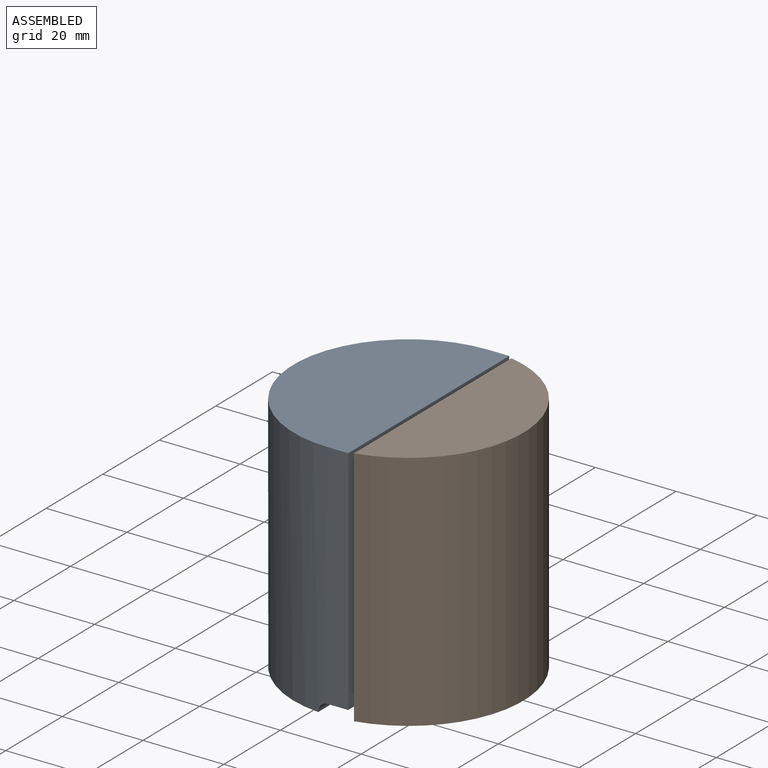
[diagram: assembled view]
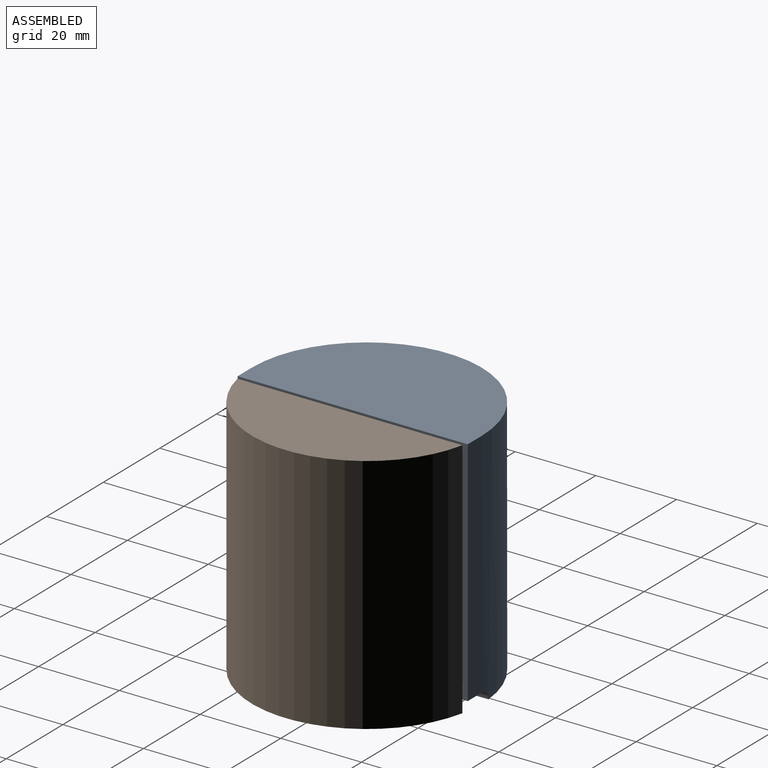
[diagram: assembled view, second angle]
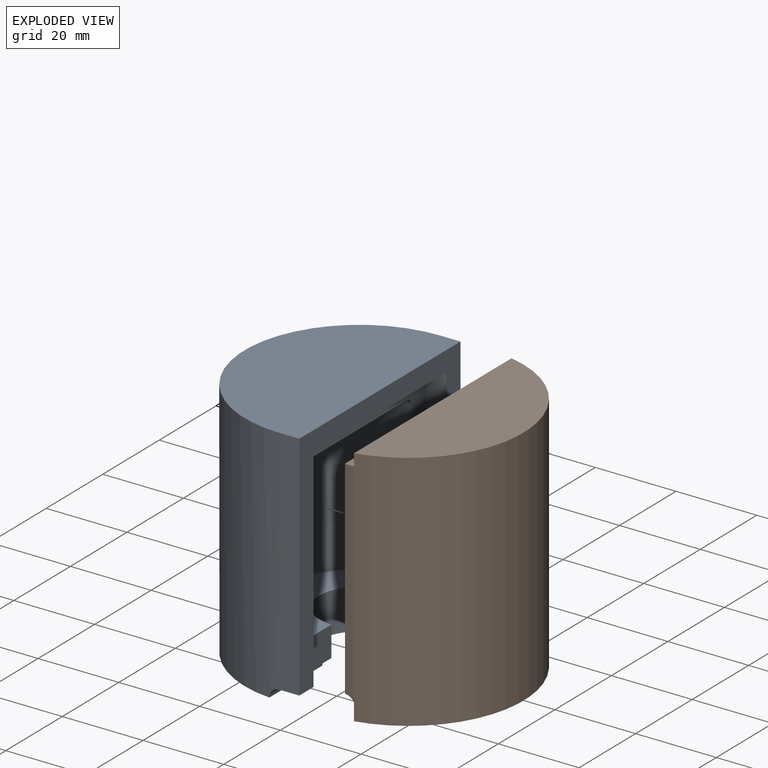
[diagram: exploded view]
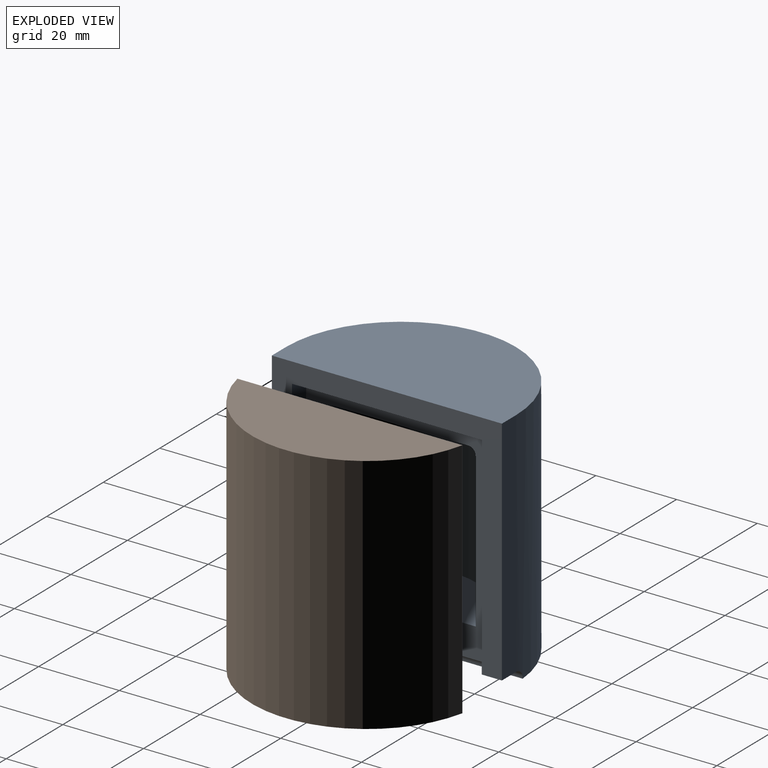
[diagram: exploded view, second angle]
ASSEMBLY  parts=2 mates=3
PART A: 19 faces, bbox 33.5x57x60 mm
  f0: plane 52.5x47mm, normal (1,0,0), area 839.1mm2, adj f1,f5,f6,f7,f8,f9,f10,f11
  f1: cylinder r=10mm len=20mm, axis (0,0,-1), area 304.3mm2, adj f0,f2,f7,f8,f9
  f2: plane 56.78x26mm, normal (0,0,1), area 1026mm2, adj f1,f3,f8,f9
  f3: cylinder r=28.5mm len=60mm, axis (0,0,-1), area 5362.3mm2, adj f2,f4,f8,f9,f15,f16
  f4: plane 57x33.5mm, normal (0,0,-1), area 1560.9mm2, adj f3,f15,f16,f18
  f5: plane 33.19x16.6mm, normal (0,0,1), area 432.6mm2, adj f0,f10
  f6: cylinder r=18.5mm len=38.1mm, axis (0,0,-1), area 2214.1mm2, adj f0,f7,f10
  f7: plane 37x18.5mm, normal (0,0,-1), area 380.5mm2, adj f0,f1,f6
  f8: cylinder r=2.5mm len=18.82mm, axis (0,-1,0), area 73.1mm2, adj f0,f1,f2,f3,f17
  f9: cylinder r=2.5mm len=18.82mm, axis (0,-1,0), area 73.1mm2, adj f0,f1,f2,f3,f14
  f10: torus R=16.59mm, axis (0,0,-1), area 167.4mm2, adj f0,f5,f6
  f11: plane 52.5x5mm, normal (0,-1,0), area 262.5mm2, adj f0,f12,f17,f18
  f12: plane 47x5mm, normal (0,0,1), area 235mm2, adj f0,f11,f13,f18
  f13: plane 52.5x5mm, normal (0,1,0), area 262.5mm2, adj f0,f12,f14,f18
  f14: plane 5x5mm, normal (0,0,1), area 25mm2, adj f9,f13,f15,f18
  f15: plane 57.5x5mm, normal (0,-1,0), area 287.5mm2, adj f3,f4,f14,f18
  f16: plane 57.5x5mm, normal (0,1,0), area 287.5mm2, adj f3,f4,f17,f18
  f17: plane 5x5mm, normal (0,0,1), area 25mm2, adj f8,f11,f16,f18
  f18: plane 57.5x57mm, normal (1,0,0), area 810mm2, adj f4,f11,f12,f13,f14,f15,f16,f17
PART B: 15 faces, bbox 28.5x55.7x60 mm
  f0: plane 55.72x26mm, normal (0,0,1), area 986.3mm2, adj f1,f3,f8,f9,f11,f12,f14
  f1: cylinder r=28.5mm len=60mm, axis (0,0,-1), area 4646.7mm2, adj f0,f2,f14
  f2: plane 55.72x22.5mm, normal (0,0,-1), area 936.4mm2, adj f1,f14
  f3: cylinder r=10mm len=20mm, axis (0,0,-1), area 304.3mm2, adj f0,f6,f7,f8,f9
  f4: plane 33.19x16.6mm, normal (0,0,1), area 432.6mm2, adj f7,f10
  f5: cylinder r=18.5mm len=38.1mm, axis (0,0,-1), area 2214.1mm2, adj f6,f7,f10
  f6: plane 37x18.5mm, normal (0,0,-1), area 380.5mm2, adj f3,f5,f7
  f7: plane 51.5x45mm, normal (1,0,0), area 689.1mm2, adj f3,f4,f5,f6,f8,f9,f10,f11
  f8: cylinder r=2.5mm len=12.82mm, axis (0,-1,0), area 49.7mm2, adj f0,f3,f7,f11
  f9: cylinder r=2.5mm len=12.82mm, axis (0,-1,0), area 49.7mm2, adj f0,f3,f7,f12
  f10: torus R=16.59mm, axis (0,0,-1), area 167.4mm2, adj f4,f5,f7
  f11: plane 54x6mm, normal (0,1,0), area 319.1mm2, adj f0,f7,f8,f13,f14
  f12: plane 54x6mm, normal (0,-1,0), area 319.1mm2, adj f0,f7,f9,f13,f14
  f13: plane 45x6mm, normal (0,0,-1), area 270mm2, adj f7,f11,f12,f14
  f14: plane 60x55.72mm, normal (1,0,0), area 913.4mm2, adj f0,f1,f2,f11,f12,f13
PLACE A rot(axis=(1,0,0),180deg) t=(-34.33,-102.72,77.84)mm
PLACE B rot(axis=(0,1,0),180deg) t=(-34.33,-102.72,77.84)mm
MATE planar B.f2 <-> A.f4  axis (0,0,1) through (-18.93,-102.72,77.84)mm
MATE planar B.f7 <-> A.f0  axis (-1,0,0) through (-34.33,-102.72,47.17)mm
MATE cylindrical B.f1 <-> A.f1  axis (0,0,1) through (-34.33,-102.72,22.84)mm
